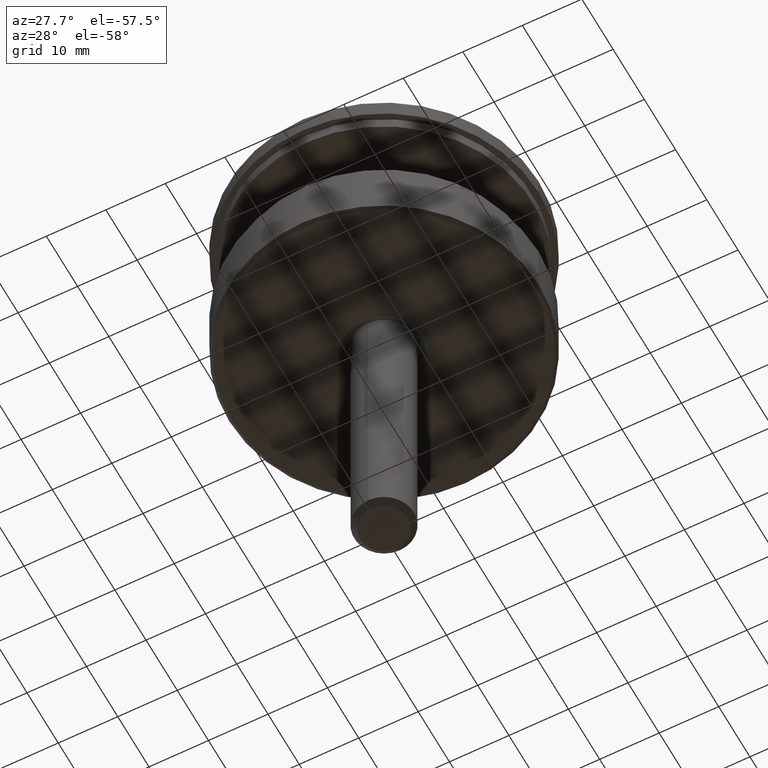
[diagram: clean part render]
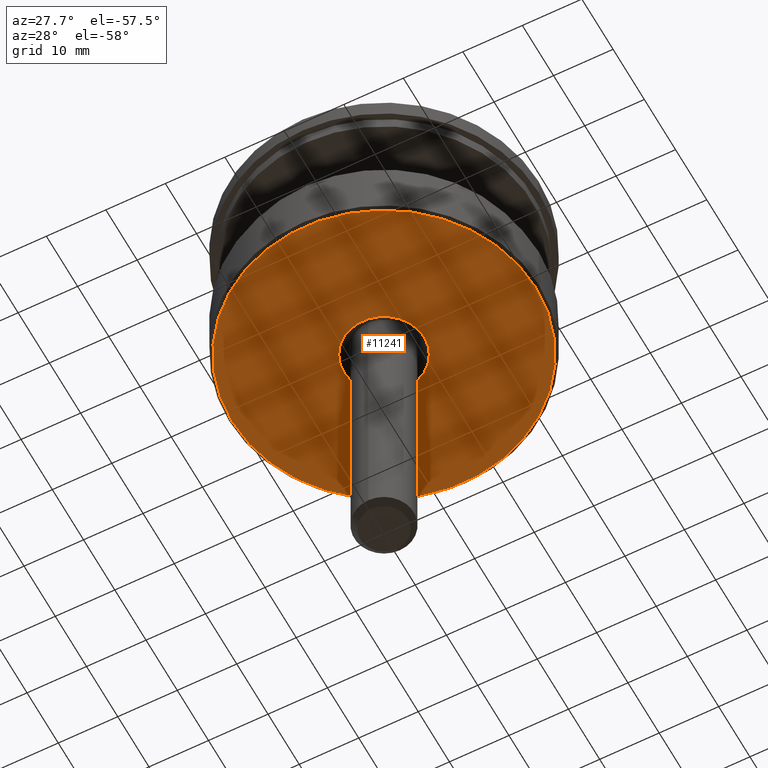
[diagram: same view with one face highlighted and labeled with its STEP entity id]
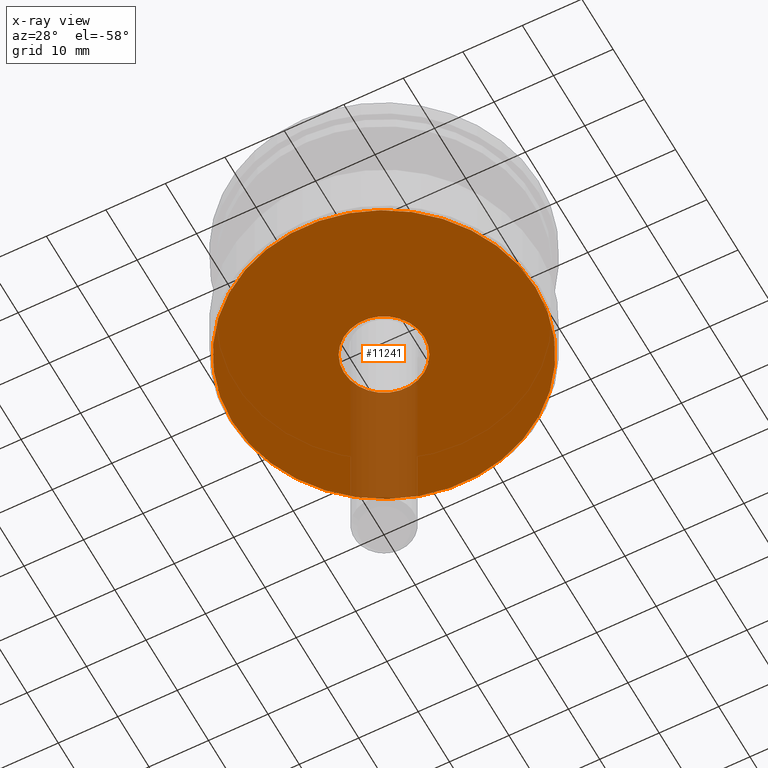
[diagram: x-ray of the same camera — body ghosted, the highlighted face saturated]
A machine part, auxiliary view. The second image highlights one B-rep face of the part: STEP entity #11241.
The next image is the same camera in x-ray: the body ghosted, the highlighted face saturated — about 10% of this face is hidden behind the body in this view.
In plain terms, the highlighted planar face has unit normal (0, 0, 1).
Its self-contained STEP definition (entity closure, byte-faithful):
#460 = EDGE_CURVE ( 'NONE', #8879, #13351, #7473, .T. ) ;
#604 = AXIS2_PLACEMENT_3D ( 'NONE', #3803, #12784, #14082 ) ;
#1383 = CARTESIAN_POINT ( 'NONE',  ( -25.49999999999999645, 3.153465507804434404E-15, 0.000000000000000000 ) ) ;
#1776 = CARTESIAN_POINT ( 'NONE',  ( -6.749999999999992006, 0.000000000000000000, 0.000000000000000000 ) ) ;
#1926 = DIRECTION ( 'NONE',  ( 1.000000000000000000, 0.000000000000000000, 0.000000000000000000 ) ) ;
#2080 = AXIS2_PLACEMENT_3D ( 'NONE', #9291, #4202, #15720 ) ;
#2251 = EDGE_LOOP ( 'NONE', ( #16449, #14833 ) ) ;
#3251 = EDGE_CURVE ( 'NONE', #13351, #8879, #6228, .T. ) ;
#3698 = DIRECTION ( 'NONE',  ( 0.000000000000000000, 0.000000000000000000, 1.000000000000000000 ) ) ;
#3803 = CARTESIAN_POINT ( 'NONE',  ( 0.000000000000000000, 0.000000000000000000, 0.000000000000000000 ) ) ;
#4061 = CIRCLE ( 'NONE', #2080, 25.49999999999999645 ) ;
#4202 = DIRECTION ( 'NONE',  ( -0.000000000000000000, -0.000000000000000000, -1.000000000000000000 ) ) ;
#4467 = CARTESIAN_POINT ( 'NONE',  ( 6.749999999999992006, 8.266365894244624473E-16, 0.000000000000000000 ) ) ;
#5041 = CARTESIAN_POINT ( 'NONE',  ( 25.49999999999999645, 0.000000000000000000, 0.000000000000000000 ) ) ;
#5677 = EDGE_LOOP ( 'NONE', ( #8166, #7718 ) ) ;
#5830 = AXIS2_PLACEMENT_3D ( 'NONE', #6275, #3698, #13874 ) ;
#6228 = CIRCLE ( 'NONE', #604, 6.749999999999992006 ) ;
#6275 = CARTESIAN_POINT ( 'NONE',  ( 0.000000000000000000, 0.000000000000000000, 0.000000000000000000 ) ) ;
#6969 = DIRECTION ( 'NONE',  ( 1.000000000000000000, 0.000000000000000000, 0.000000000000000000 ) ) ;
#7458 = FACE_OUTER_BOUND ( 'NONE', #2251, .T. ) ;
#7473 = CIRCLE ( 'NONE', #15421, 6.749999999999992006 ) ;
#7508 = VERTEX_POINT ( 'NONE', #5041 ) ;
#7718 = ORIENTED_EDGE ( 'NONE', *, *, #3251, .T. ) ;
#8166 = ORIENTED_EDGE ( 'NONE', *, *, #460, .T. ) ;
#8271 = FACE_BOUND ( 'NONE', #5677, .T. ) ;
#8879 = VERTEX_POINT ( 'NONE', #1776 ) ;
#9291 = CARTESIAN_POINT ( 'NONE',  ( 0.000000000000000000, 0.000000000000000000, 0.000000000000000000 ) ) ;
#9392 = CARTESIAN_POINT ( 'NONE',  ( 0.000000000000000000, 0.000000000000000000, 0.000000000000000000 ) ) ;
#9677 = EDGE_CURVE ( 'NONE', #7508, #10529, #15530, .T. ) ;
#10529 = VERTEX_POINT ( 'NONE', #1383 ) ;
#11008 = PLANE ( 'NONE',  #5830 ) ;
#11012 = DIRECTION ( 'NONE',  ( -0.000000000000000000, -0.000000000000000000, -1.000000000000000000 ) ) ;
#11241 = ADVANCED_FACE ( 'NONE', ( #7458, #8271 ), #11008, .F. ) ;
#11408 = EDGE_CURVE ( 'NONE', #10529, #7508, #4061, .T. ) ;
#12784 = DIRECTION ( 'NONE',  ( 0.000000000000000000, 0.000000000000000000, 1.000000000000000000 ) ) ;
#13351 = VERTEX_POINT ( 'NONE', #4467 ) ;
#13393 = DIRECTION ( 'NONE',  ( 0.000000000000000000, 0.000000000000000000, 1.000000000000000000 ) ) ;
#13604 = CARTESIAN_POINT ( 'NONE',  ( 0.000000000000000000, 0.000000000000000000, 0.000000000000000000 ) ) ;
#13683 = AXIS2_PLACEMENT_3D ( 'NONE', #13604, #11012, #1926 ) ;
#13874 = DIRECTION ( 'NONE',  ( 1.000000000000000000, 0.000000000000000000, -0.000000000000000000 ) ) ;
#14082 = DIRECTION ( 'NONE',  ( 1.000000000000000000, 0.000000000000000000, 0.000000000000000000 ) ) ;
#14833 = ORIENTED_EDGE ( 'NONE', *, *, #11408, .T. ) ;
#15421 = AXIS2_PLACEMENT_3D ( 'NONE', #9392, #13393, #6969 ) ;
#15530 = CIRCLE ( 'NONE', #13683, 25.49999999999999645 ) ;
#15720 = DIRECTION ( 'NONE',  ( 1.000000000000000000, 0.000000000000000000, 0.000000000000000000 ) ) ;
#16449 = ORIENTED_EDGE ( 'NONE', *, *, #9677, .T. ) ;